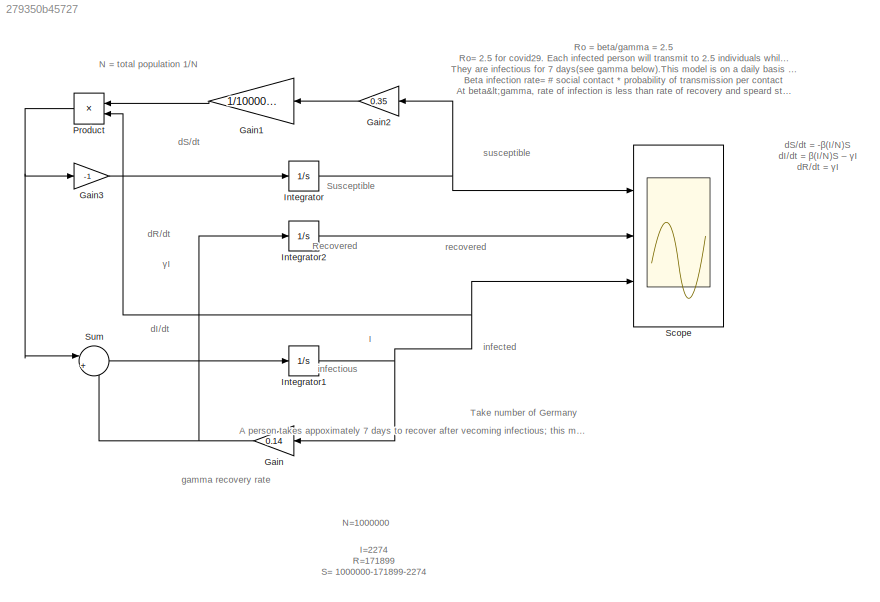
MODEL slx_279350b45727
KIND model
CONFIG AbsTol = auto
CONFIG EnableMultiTasking = off
CONFIG FixedStep = auto
CONFIG MaxStep = auto
CONFIG MinStep = auto
CONFIG RelTol = 1e-3
CONFIG SampleTimeConstraint = Unconstrained
CONFIG Solver = VariableStepAuto
CONFIG SolverName = VariableStepAuto
CONFIG StartTime = 0.0
CONFIG StopTime = 100
BLOCK [Gain] Gain
  Gain = 0.14
BLOCK [Gain] Gain1
  Gain = 1/1000000
BLOCK [Gain] Gain2
  Gain = 0.35
BLOCK [Gain] Gain3
  Gain = -1
BLOCK [Integrator] Integrator
  InitialCondition = 1000000-171899-2274
  Ports = [1, 1]
BLOCK [Integrator] Integrator1
  InitialCondition = 2274
  Ports = [1, 1]
BLOCK [Integrator] Integrator2
  InitialCondition = 171899
  Ports = [1, 1]
BLOCK [Product] Product
  Ports = [2, 1]
BLOCK [Scope] Scope
  Floating = off
  NumInputPorts = 3
  Ports = [3]
  ScopeSpecificationString = Simulink.scopes.TimeScopeBlockCfg('CurrentConfiguration', extmgr.ConfigurationSet(extmgr.Configuration('Core','General UI',true),extmgr.Configuration('Core','Source UI',true),extmgr.Configuration('Sources','WiredSimulink',true),extmgr.Configuration('Visuals','Time Domain',true,'SerializedDisplays',{struct('MinYLimReal','-103439.91954','MaxYLimReal','949722.22414','YLabelReal','','MinYLimMag','    ...<+1423ch>
BLOCK [Sum] Sum
  Inputs = |+-
  Ports = [2, 1]
ANNOTATION (root): dI/dt
ANNOTATION (root): Ro = beta/gamma = 2.5 Ro= 2.5 for covid29. Each infected person will transmit to 2.5 individuals while they are infectious. They are infectious for 7 days(see gamma below).This model is on a daily basis so 2.5/7=0.35 Beta infection rate= # social contact * probability of transmission per contact At beta<gamma, rate of infection is less than rate of recovery and speard stop, Try beta =.18 or .14
ANNOTATION (root): dS/dt = -β(I/N)S dI/dt = β(I/N)S – γI dR/dt = γI
ANNOTATION (root): A person takes appoximately 7 days to recover after vecoming infectious; this model is on a daily basis so 1/7=.14
ANNOTATION (root): I
ANNOTATION (root): I=2274 R=171899 S= 1000000-171899-2274
ANNOTATION (root): N = total population 1/N
ANNOTATION (root): N=1000000
ANNOTATION (root): Recovered
ANNOTATION (root): Susceptible
ANNOTATION (root): Take number of Germany
ANNOTATION (root): dR/dt
ANNOTATION (root): dS/dt
ANNOTATION (root): gamma recovery rate
ANNOTATION (root): infected
ANNOTATION (root): infectious
ANNOTATION (root): recovered
ANNOTATION (root): susceptible
ANNOTATION (root): γI
LINE Gain1:1 -> Product:1
LINE Gain2:1 -> Gain1:1
LINE Gain3:1 -> Integrator:1
NET Gain:1 -> Integrator2:1, Sum:2
NET Integrator1:1 -> Gain:1, Product:2, Scope:3
LINE Integrator2:1 -> Scope:2
NET Integrator:1 -> Gain2:1, Scope:1
NET Product:1 -> Gain3:1, Sum:1
LINE Sum:1 -> Integrator1:1
note: NET lines group one-source signal fan-out (src -> all destinations, sorted); 1:1 wires keep LINE
